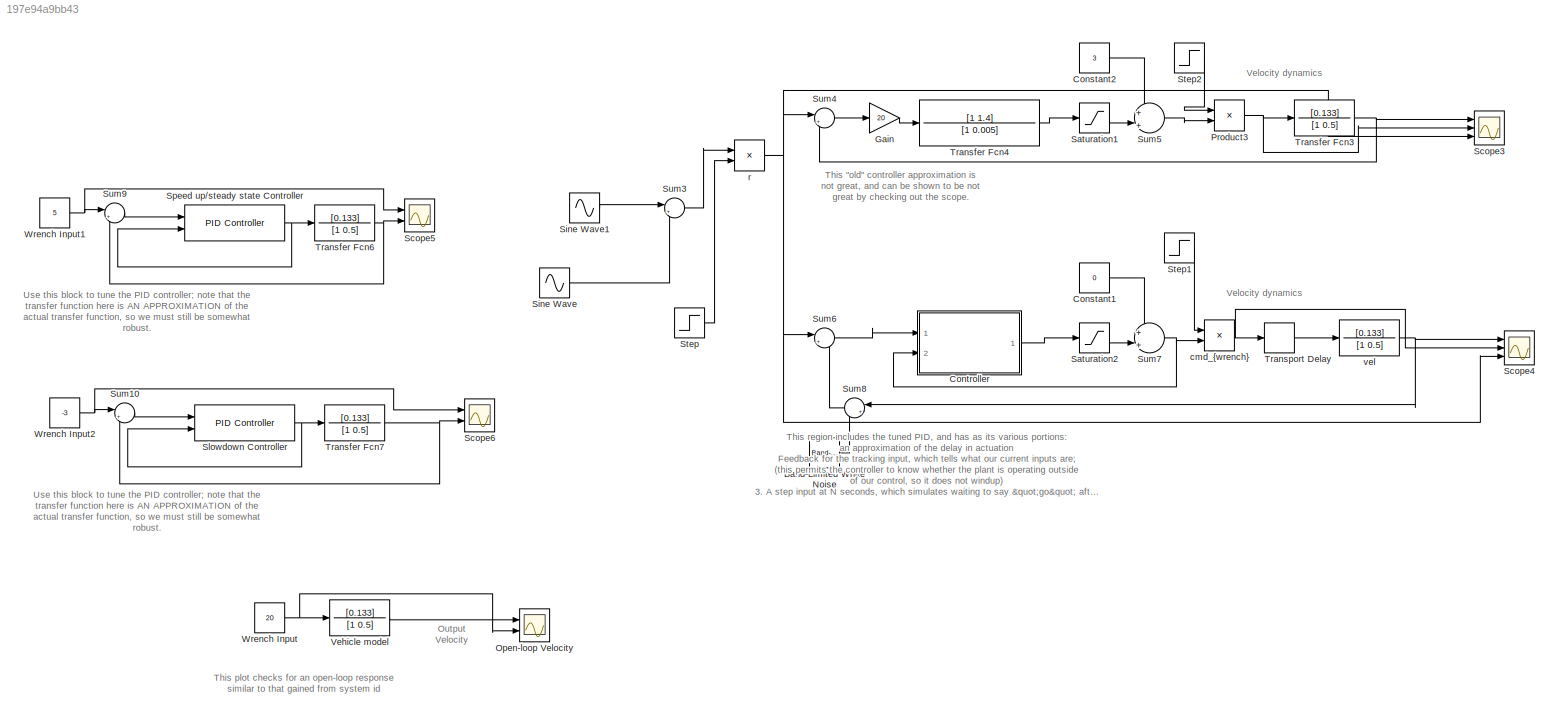
MODEL slx_197e94a9bb43
KIND model
CONFIG AbsTol = auto
CONFIG EnableMultiTasking = on
CONFIG FixedStep = auto
CONFIG MaxStep = auto
CONFIG MinStep = auto
CONFIG RelTol = 1e-3
CONFIG SampleTimeConstraint = Unconstrained
CONFIG Solver = VariableStepAuto
CONFIG SolverName = VariableStepAuto
CONFIG StartTime = 0.0
CONFIG StopTime = 20.0
BLOCK [Reference] Band-Limited White Noise  REF=simulink/Sources/Band-Limited
White Noise
  Ports = [0, 1]
  SourceBlock = simulink/Sources/Band-Limited\nWhite Noise
  SourceProductBaseCode = SL
  SourceProductName = Simulink
  SourceType = Band-Limited White Noise.
BLOCK [Constant] Constant1
  Value = 0
BLOCK [Constant] Constant2
  Value = 3
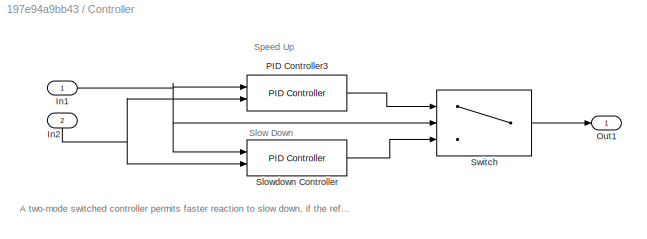
BLOCK [SubSystem] Controller
  Ports = [2, 1]
  RequestExecContextInheritance = off
BLOCK [Inport] Controller/In1
  IconDisplay = Port number
BLOCK [Inport] Controller/In2
  IconDisplay = Port number
  Port = 2
BLOCK [Outport] Controller/Out1
  IconDisplay = Port number
BLOCK [Reference] Controller/PID Controller3  REF=simulink/Continuous/PID Controller
  Ports = [2, 1]
  SourceBlock = simulink/Continuous/PID Controller
  SourceProductBaseCode = SL
  SourceProductName = Simulink
  SourceType = PID 1dof
BLOCK [Reference] Controller/Slowdown Controller  REF=simulink/Continuous/PID Controller
  Ports = [2, 1]
  SourceBlock = simulink/Continuous/PID Controller
  SourceProductBaseCode = SL
  SourceProductName = Simulink
  SourceType = PID 1dof
BLOCK [Switch] Controller/Switch
  Criteria = u2 > Threshold
  InputSameDT = off
  SaturateOnIntegerOverflow = off
  Threshold = -0.25
BLOCK [Gain] Gain
  Gain = 20
  OutDataTypeStr = Inherit: Inherit via internal rule
  ParamDataTypeStr = Inherit: Inherit via internal rule
  SaturateOnIntegerOverflow = off
BLOCK [Scope] Open-loop Velocity
  Floating = off
  NumInputPorts = 2
  Ports = [2]
  ScopeSpecificationString = Simulink.scopes.TimeScopeBlockCfg('CurrentConfiguration', extmgr.ConfigurationSet(extmgr.Configuration('Core','General UI',true),extmgr.Configuration('Core','Source UI',true),extmgr.Configuration('Sources','WiredSimulink',true,'DataLoggingVariableName','ScopeData1'),extmgr.Configuration('Visuals','Time Domain',true,'SerializedDisplays',{struct('MinYLimReal','-2.5','MaxYLimReal','22.5','YLabelReal'...<+1415ch>
BLOCK [Product] Product3
  InputSameDT = off
  OutDataTypeStr = Inherit: Inherit via internal rule
  Ports = [2, 1]
  RndMeth = Floor
  SaturateOnIntegerOverflow = off
BLOCK [Saturate] Saturation1
  InputPortMap = u0
  LowerLimit = -40
  Ports = [1, 1]
  UpperLimit = 40
BLOCK [Saturate] Saturation2
  InputPortMap = u0
  LowerLimit = -60
  Ports = [1, 1]
  UpperLimit = 40
BLOCK [Scope] Scope3
  Floating = off
  NumInputPorts = 3
  Ports = [3]
  ScopeSpecificationString = Simulink.scopes.TimeScopeBlockCfg('CurrentConfiguration', extmgr.ConfigurationSet(extmgr.Configuration('Core','General UI',true),extmgr.Configuration('Core','Source UI',true),extmgr.Configuration('Sources','WiredSimulink',true,'DataLoggingVariableName','ScopeData3'),extmgr.Configuration('Visuals','Time Domain',true,'SerializedDisplays',{struct('MinYLimReal','-5.375','MaxYLimReal','48.375','YLabelR...<+1477ch>
BLOCK [Scope] Scope4
  Floating = off
  NumInputPorts = 3
  Ports = [3]
  ScopeSpecificationString = Simulink.scopes.TimeScopeBlockCfg('CurrentConfiguration', extmgr.ConfigurationSet(extmgr.Configuration('Core','General UI',true,'FigureColor',[1 1 1]),extmgr.Configuration('Core','Source UI',true),extmgr.Configuration('Sources','WiredSimulink',true,'DataLoggingVariableName','ScopeData1'),extmgr.Configuration('Visuals','Time Domain',true,'SerializedDisplays',{struct('MinYLimReal','-14.44996','MaxYL...<+1583ch>
BLOCK [Scope] Scope5
  Floating = off
  NumInputPorts = 2
  Ports = [2]
  ScopeSpecificationString = Simulink.scopes.TimeScopeBlockCfg('CurrentConfiguration', extmgr.ConfigurationSet(extmgr.Configuration('Core','General UI',true),extmgr.Configuration('Core','Source UI',true),extmgr.Configuration('Sources','WiredSimulink',true,'DataLoggingVariableName','ScopeData1'),extmgr.Configuration('Visuals','Time Domain',true,'SerializedDisplays',{struct('MinYLimReal','-0.64609','MaxYLimReal','5.81482','YLab...<+1417ch>
BLOCK [Scope] Scope6
  Floating = off
  NumInputPorts = 2
  Ports = [2]
  ScopeSpecificationString = Simulink.scopes.TimeScopeBlockCfg('CurrentConfiguration', extmgr.ConfigurationSet(extmgr.Configuration('Core','General UI',true),extmgr.Configuration('Core','Source UI',true),extmgr.Configuration('Sources','WiredSimulink',true,'DataLoggingVariableName','ScopeData2'),extmgr.Configuration('Visuals','Time Domain',true,'SerializedDisplays',{struct('MinYLimReal','-3.375','MaxYLimReal','0.375','YLabelRe...<+1405ch>
BLOCK [Sin] Sine Wave
  Bias = 2
  Frequency = 1.8
  Ports = [0, 1]
  SampleTime = 0
BLOCK [Sin] Sine Wave1
  Amplitude = 1.4
  Bias = 7
  Frequency = 0.2
  Ports = [0, 1]
  SampleTime = 0
BLOCK [Reference] Slowdown Controller  REF=simulink/Continuous/PID Controller
  Ports = [2, 1]
  SourceBlock = simulink/Continuous/PID Controller
  SourceProductBaseCode = SL
  SourceProductName = Simulink
  SourceType = PID 1dof
BLOCK [Reference] Speed up//steady state Controller  REF=simulink/Continuous/PID Controller
  Ports = [2, 1]
  SourceBlock = simulink/Continuous/PID Controller
  SourceProductBaseCode = SL
  SourceProductName = Simulink
  SourceType = PID 1dof
BLOCK [Step] Step
  After = 0
  Before = 1
  SampleTime = 0
  Time = 15
BLOCK [Step] Step1
  SampleTime = 0
  Time = 10
BLOCK [Step] Step2
  SampleTime = 0
  Time = 13
BLOCK [Sum] Sum10
  IconShape = round
  InputSameDT = off
  Inputs = |+-
  OutDataTypeStr = Inherit: Inherit via internal rule
  Ports = [2, 1]
  SaturateOnIntegerOverflow = off
BLOCK [Sum] Sum3
  IconShape = round
  InputSameDT = off
  Inputs = |+-
  OutDataTypeStr = Inherit: Inherit via internal rule
  Ports = [2, 1]
  SaturateOnIntegerOverflow = off
BLOCK [Sum] Sum4
  IconShape = round
  InputSameDT = off
  Inputs = |+-
  OutDataTypeStr = Inherit: Inherit via internal rule
  Ports = [2, 1]
  SaturateOnIntegerOverflow = off
BLOCK [Sum] Sum5
  IconShape = round
  InputSameDT = off
  Inputs = +|+||
  OutDataTypeStr = Inherit: Inherit via internal rule
  Ports = [2, 1]
  SaturateOnIntegerOverflow = off
BLOCK [Sum] Sum6
  IconShape = round
  InputSameDT = off
  Inputs = |+-
  OutDataTypeStr = Inherit: Inherit via internal rule
  Ports = [2, 1]
  SaturateOnIntegerOverflow = off
BLOCK [Sum] Sum7
  IconShape = round
  InputSameDT = off
  Inputs = +|+||
  OutDataTypeStr = Inherit: Inherit via internal rule
  Ports = [2, 1]
  SaturateOnIntegerOverflow = off
BLOCK [Sum] Sum8
  IconShape = round
  InputSameDT = off
  Inputs = |++
  OutDataTypeStr = Inherit: Inherit via internal rule
  Ports = [2, 1]
  SaturateOnIntegerOverflow = off
BLOCK [Sum] Sum9
  IconShape = round
  InputSameDT = off
  Inputs = |+-
  OutDataTypeStr = Inherit: Inherit via internal rule
  Ports = [2, 1]
  SaturateOnIntegerOverflow = off
BLOCK [TransferFcn] Transfer Fcn3
  Denominator = [1 0.5]
  Numerator = [0.133]
BLOCK [TransferFcn] Transfer Fcn4
  Denominator = [1 0.005]
  Numerator = [1 1.4]
BLOCK [TransferFcn] Transfer Fcn6
  Denominator = [1 0.5]
  Numerator = [0.133]
BLOCK [TransferFcn] Transfer Fcn7
  Denominator = [1 0.5]
  Numerator = [0.133]
BLOCK [TransportDelay] Transport Delay
  DelayTime = 0.2
  Ports = [1, 1]
BLOCK [TransferFcn] Vehicle model
  Denominator = [1 0.5]
  Numerator = [0.133]
BLOCK [Constant] Wrench Input
  Value = 20
BLOCK [Constant] Wrench Input1
  Value = 5
BLOCK [Constant] Wrench Input2
  Value = -3
BLOCK [Product] cmd_{wrench}
  InputSameDT = off
  OutDataTypeStr = Inherit: Inherit via internal rule
  Ports = [2, 1]
  RndMeth = Floor
  SaturateOnIntegerOverflow = off
BLOCK [Product] r
  InputSameDT = off
  OutDataTypeStr = Inherit: Inherit via internal rule
  Ports = [2, 1]
  RndMeth = Floor
  SaturateOnIntegerOverflow = off
BLOCK [TransferFcn] vel
  Denominator = [1 0.5]
  Numerator = [0.133]
ANNOTATION (root): This region includes the tuned PID, and has as its various portions: an approximation of the delay in actuation Feedback for the tracking input, which tells what our current inputs are; (this permits the controller to know whether the plant is operating outside of our control, so it does not windup) 3. A step input at N seconds, which simulates waiting to say "go" after the controller has already ...<+43ch>
ANNOTATION (root): Output Velocity
ANNOTATION (root): This "old" controller approximation is not great, and can be shown to be not great by checking out the scope.
ANNOTATION (root): This plot checks for an open-loop response similar to that gained from system id
ANNOTATION (root): Use this block to tune the PID controller; note that the transfer function here is AN APPROXIMATION of the actual transfer function, so we must still be somewhat robust.
ANNOTATION (root): Velocity dynamics
ANNOTATION Controller: A two-mode switched controller permits faster reaction to slow down, if the reference error is significant.
ANNOTATION Controller: Slow Down
ANNOTATION Controller: Speed Up
LINE Band-Limited White Noise:1 -> Sum8:2
LINE Constant1:1 -> Sum7:1
LINE Constant2:1 -> Sum5:1
NET Controller/In1:1 -> Controller/PID Controller3:1, Controller/Slowdown Controller:1, Controller/Switch:2
NET Controller/In2:1 -> Controller/PID Controller3:2, Controller/Slowdown Controller:2
LINE Controller/PID Controller3:1 -> Controller/Switch:1
LINE Controller/Slowdown Controller:1 -> Controller/Switch:3
LINE Controller/Switch:1 -> Controller/Out1:1
LINE Controller:1 -> Saturation2:1
LINE Gain:1 -> Transfer Fcn4:1
NET Product3:1 -> Scope3:2, Transfer Fcn3:1
LINE Saturation1:1 -> Sum5:2
LINE Saturation2:1 -> Sum7:2
LINE Sine Wave1:1 -> Sum3:1
LINE Sine Wave:1 -> Sum3:2
NET Slowdown Controller:1 -> Slowdown Controller:2, Transfer Fcn7:1
NET Speed up//steady state Controller:1 -> Speed up//steady state Controller:2, Transfer Fcn6:1
LINE Step1:1 -> cmd_{wrench}:1
LINE Step2:1 -> Product3:1
LINE Step:1 -> r:2
LINE Sum10:1 -> Slowdown Controller:1
LINE Sum3:1 -> r:1
LINE Sum4:1 -> Gain:1
LINE Sum5:1 -> Product3:2
LINE Sum6:1 -> Controller:1
NET Sum7:1 -> Controller:2, cmd_{wrench}:2
LINE Sum8:1 -> Sum6:2
LINE Sum9:1 -> Speed up//steady state Controller:1
NET Transfer Fcn3:1 -> Scope3:1, Sum4:2
LINE Transfer Fcn4:1 -> Saturation1:1
NET Transfer Fcn6:1 -> Scope5:2, Sum9:2
NET Transfer Fcn7:1 -> Scope6:2, Sum10:2
LINE Transport Delay:1 -> vel:1
LINE Vehicle model:1 -> Open-loop Velocity:1
NET Wrench Input1:1 -> Scope5:1, Sum9:1
NET Wrench Input2:1 -> Scope6:1, Sum10:1
NET Wrench Input:1 -> Open-loop Velocity:2, Vehicle model:1
NET cmd_{wrench}:1 -> Scope4:2, Transport Delay:1
NET r:1 -> Scope3:3, Scope4:3, Sum4:1, Sum6:1
NET vel:1 -> Scope4:1, Sum8:1
note: NET lines group one-source signal fan-out (src -> all destinations, sorted); 1:1 wires keep LINE
